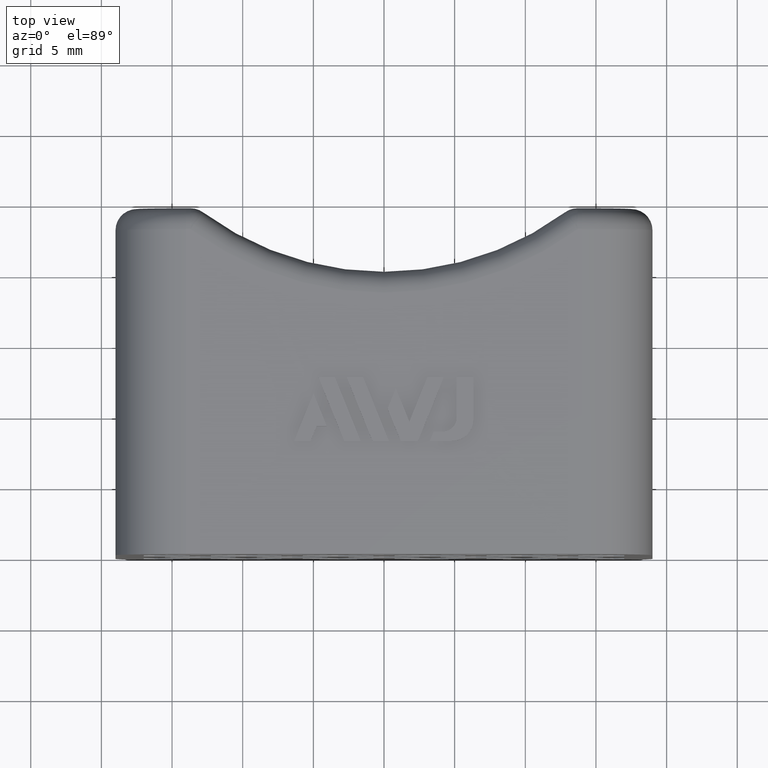
[diagram: clean part render]
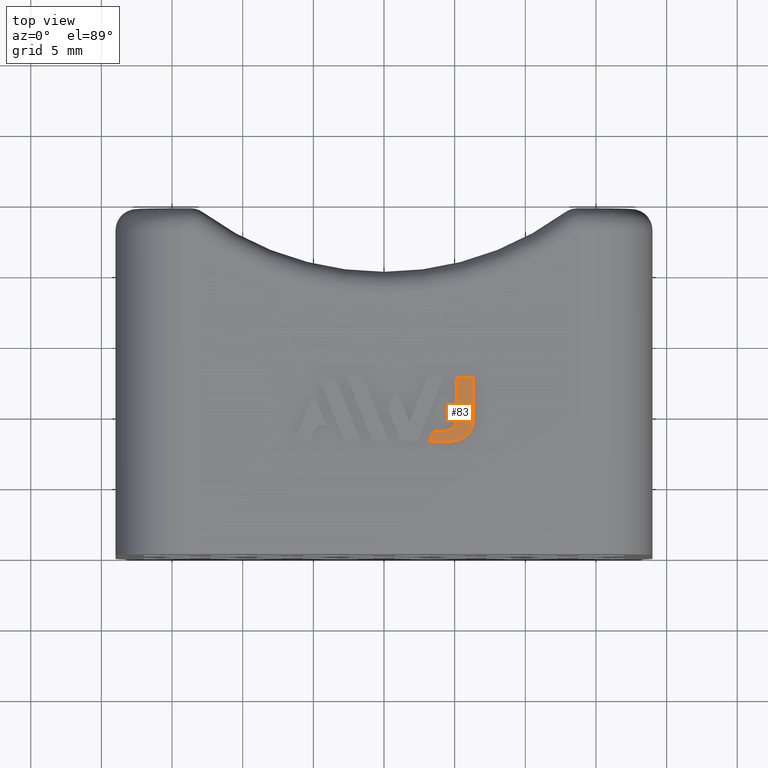
[diagram: same view with one face highlighted and labeled with its STEP entity id]
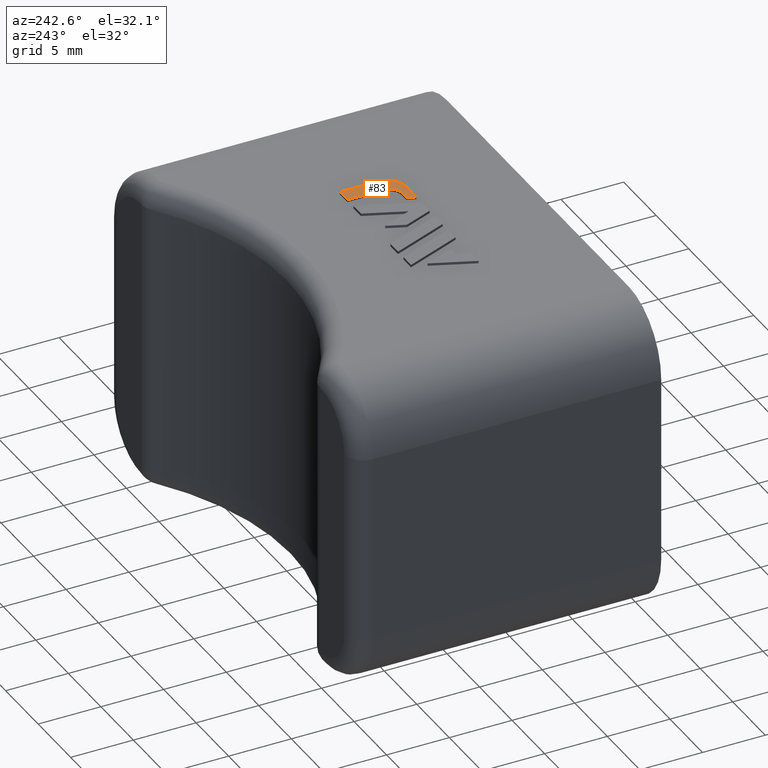
[diagram: same view with one face highlighted and labeled with its STEP entity id]
A machine part, top view. The second image highlights one B-rep face of the part: STEP entity #83.
A second angle (auxiliary view) of the same face is appended — the face is thin or edge-on in the first view.
In plain terms, the highlighted planar face has unit normal (0, 0, 1).
Its self-contained STEP definition (entity closure, byte-faithful):
#83 = ADVANCED_FACE( '', ( #376 ), #377, .T. );
#376 = FACE_OUTER_BOUND( '', #912, .T. );
#377 = PLANE( '', #913 );
#912 = EDGE_LOOP( '', ( #1642, #1643, #1644, #1645, #1646, #1647, #1648, #1649 ) );
#913 = AXIS2_PLACEMENT_3D( '', #1650, #1651, #1652 );
#1642 = ORIENTED_EDGE( '', *, *, #3625, .T. );
#1643 = ORIENTED_EDGE( '', *, *, #3618, .T. );
#1644 = ORIENTED_EDGE( '', *, *, #3621, .T. );
#1645 = ORIENTED_EDGE( '', *, *, #3629, .T. );
#1646 = ORIENTED_EDGE( '', *, *, #3627, .T. );
#1647 = ORIENTED_EDGE( '', *, *, #3630, .T. );
#1648 = ORIENTED_EDGE( '', *, *, #3631, .T. );
#1649 = ORIENTED_EDGE( '', *, *, #3623, .T. );
#1650 = CARTESIAN_POINT( '', ( 4.81907477182050, 9.50000000000001, 12.7000000000000 ) );
#1651 = DIRECTION( '', ( 0.000000000000000, 0.000000000000000, 1.00000000000000 ) );
#1652 = DIRECTION( '', ( 0.000000000000000, -1.00000000000000, 0.000000000000000 ) );
#3618 = EDGE_CURVE( '', #4445, #4443, #4446, .T. );
#3621 = EDGE_CURVE( '', #4443, #4448, #4450, .T. );
#3623 = EDGE_CURVE( '', #4453, #4451, #4454, .T. );
#3625 = EDGE_CURVE( '', #4451, #4445, #4456, .T. );
#3627 = EDGE_CURVE( '', #4459, #4457, #4460, .T. );
#3629 = EDGE_CURVE( '', #4448, #4459, #4462, .T. );
#3630 = EDGE_CURVE( '', #4457, #4463, #4464, .T. );
#3631 = EDGE_CURVE( '', #4463, #4453, #4465, .T. );
#4443 = VERTEX_POINT( '', #5679 );
#4445 = VERTEX_POINT( '', #5682 );
#4446 = LINE( '', #5683, #5684 );
#4448 = VERTEX_POINT( '', #5687 );
#4450 = LINE( '', #5690, #5691 );
#4451 = VERTEX_POINT( '', #5692 );
#4453 = VERTEX_POINT( '', #5695 );
#4454 = LINE( '', #5696, #5697 );
#4456 = CIRCLE( '', #5700, 1.50000000000000 );
#4457 = VERTEX_POINT( '', #5701 );
#4459 = VERTEX_POINT( '', #5704 );
#4460 = CIRCLE( '', #5705, 0.999999999999997 );
#4462 = LINE( '', #5708, #5709 );
#4463 = VERTEX_POINT( '', #5710 );
#4464 = LINE( '', #5711, #5712 );
#4465 = LINE( '', #5713, #5714 );
#5679 = CARTESIAN_POINT( '', ( 6.31907477182050, 12.4967077130809, 12.7000000000000 ) );
#5682 = CARTESIAN_POINT( '', ( 6.31907477182050, 9.50000000000001, 12.7000000000000 ) );
#5683 = CARTESIAN_POINT( '', ( 6.31907477182050, 9.50000000000001, 12.7000000000000 ) );
#5684 = VECTOR( '', #6870, 1000.00000000000 );
#5687 = CARTESIAN_POINT( '', ( 5.14390185782692, 12.4967077130809, 12.7000000000000 ) );
#5690 = CARTESIAN_POINT( '', ( 6.31907477182050, 12.4967077130809, 12.7000000000000 ) );
#5691 = VECTOR( '', #6873, 1000.00000000000 );
#5692 = CARTESIAN_POINT( '', ( 4.81907477182051, 8.00000000000001, 12.7000000000000 ) );
#5695 = CARTESIAN_POINT( '', ( 3.24098335256638, 8.00000000000001, 12.7000000000000 ) );
#5696 = CARTESIAN_POINT( '', ( 3.24098335256638, 8.00000000000001, 12.7000000000000 ) );
#5697 = VECTOR( '', #6875, 1000.00000000000 );
#5700 = AXIS2_PLACEMENT_3D( '', #6877, #6878, #6879 );
#5701 = CARTESIAN_POINT( '', ( 4.14390185782692, 8.65390620930045, 12.7000000000000 ) );
#5704 = CARTESIAN_POINT( '', ( 5.14390185782692, 9.65390620930044, 12.7000000000000 ) );
#5705 = AXIS2_PLACEMENT_3D( '', #6881, #6882, #6883 );
#5708 = CARTESIAN_POINT( '', ( 5.14390185782692, 12.4967077130809, 12.7000000000000 ) );
#5709 = VECTOR( '', #6885, 1000.00000000000 );
#5710 = CARTESIAN_POINT( '', ( 3.50517861036021, 8.65390620930046, 12.7000000000000 ) );
#5711 = CARTESIAN_POINT( '', ( 4.14390185782692, 8.65390620930046, 12.7000000000000 ) );
#5712 = VECTOR( '', #6886, 1000.00000000000 );
#5713 = CARTESIAN_POINT( '', ( 3.50517861036022, 8.65390620930046, 12.7000000000000 ) );
#5714 = VECTOR( '', #6887, 1000.00000000000 );
#6870 = DIRECTION( '', ( 6.07153216591882E-017, 1.00000000000000, 0.000000000000000 ) );
#6873 = DIRECTION( '', ( -1.00000000000000, 0.000000000000000, 0.000000000000000 ) );
#6875 = DIRECTION( '', ( 1.00000000000000, 0.000000000000000, 0.000000000000000 ) );
#6877 = CARTESIAN_POINT( '', ( 4.81907477182050, 9.50000000000001, 12.7000000000000 ) );
#6878 = DIRECTION( '', ( 0.000000000000000, 0.000000000000000, 1.00000000000000 ) );
#6879 = DIRECTION( '', ( 0.000000000000000, -1.00000000000000, 0.000000000000000 ) );
#6881 = CARTESIAN_POINT( '', ( 4.14390185782692, 9.65390620930044, 12.7000000000000 ) );
#6882 = DIRECTION( '', ( 0.000000000000000, 0.000000000000000, -1.00000000000000 ) );
#6883 = DIRECTION( '', ( 1.00000000000000, 0.000000000000000, 0.000000000000000 ) );
#6885 = DIRECTION( '', ( -6.07153216591882E-017, -1.00000000000000, 0.000000000000000 ) );
#6886 = DIRECTION( '', ( -1.00000000000000, 0.000000000000000, 0.000000000000000 ) );
#6887 = DIRECTION( '', ( -0.374606593415912, -0.927183854566787, 0.000000000000000 ) );